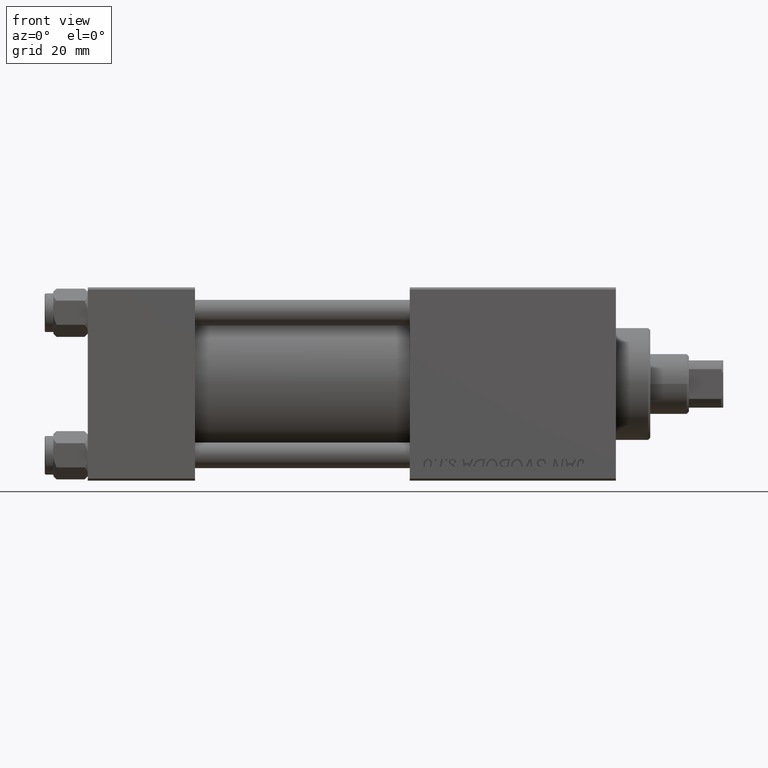
[diagram: clean part render]
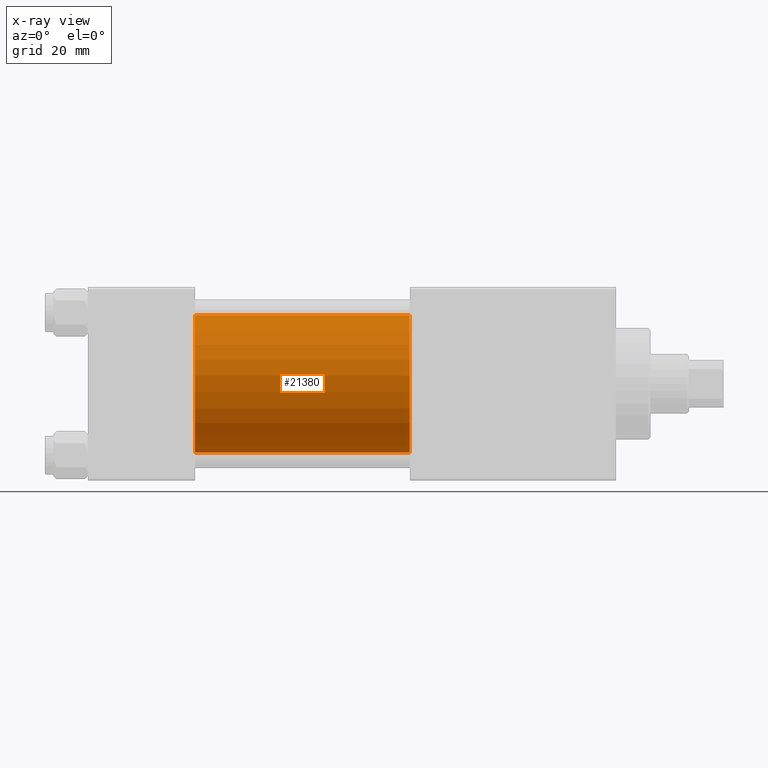
[diagram: x-ray — body ghosted, one internal face saturated and labeled with its STEP entity id]
A machine part, front view, then the same camera in x-ray: the body is ghosted and one INTERNAL B-rep face — a face not visible from any outside direction — is saturated and labeled: STEP entity #21380.
In plain terms, the highlighted cylindrical surface (partial cylindrical patch) has radius 16 mm, axis along (-1, -0, -0).
Its self-contained STEP definition (entity closure, byte-faithful):
#196 = ORIENTED_EDGE ( 'NONE', *, *, #17497, .T. ) ;
#504 = CIRCLE ( 'NONE', #41968, 16.00000000000000000 ) ;
#1637 = VERTEX_POINT ( 'NONE', #39428 ) ;
#3643 = CIRCLE ( 'NONE', #35335, 16.00000000000000000 ) ;
#5927 = CARTESIAN_POINT ( 'NONE',  ( 75.00000000000001421, -6.426503353294456087E-16, -16.00000000000000000 ) ) ;
#6178 = DIRECTION ( 'NONE',  ( -1.000000000000000000, -0.000000000000000000, -0.000000000000000000 ) ) ;
#6396 = ORIENTED_EDGE ( 'NONE', *, *, #40834, .T. ) ;
#6919 = VERTEX_POINT ( 'NONE', #12390 ) ;
#9381 = ORIENTED_EDGE ( 'NONE', *, *, #36210, .F. ) ;
#10246 = DIRECTION ( 'NONE',  ( 0.000000000000000000, 0.000000000000000000, 1.000000000000000000 ) ) ;
#11720 = VERTEX_POINT ( 'NONE', #23829 ) ;
#12390 = CARTESIAN_POINT ( 'NONE',  ( 75.00000000000001421, -6.426503353294456087E-16, -16.00000000000000000 ) ) ;
#13632 = VERTEX_POINT ( 'NONE', #27754 ) ;
#15426 = DIRECTION ( 'NONE',  ( 1.000000000000000000, 0.000000000000000000, 0.000000000000000000 ) ) ;
#17497 = EDGE_CURVE ( 'NONE', #6919, #11720, #33442, .T. ) ;
#18273 = LINE ( 'NONE', #49074, #32670 ) ;
#21380 = ADVANCED_FACE ( 'NONE', ( #21957 ), #21694, .F. ) ;
#21694 = CYLINDRICAL_SURFACE ( 'NONE', #39996, 16.00000000000000000 ) ;
#21957 = FACE_OUTER_BOUND ( 'NONE', #30519, .T. ) ;
#22030 = EDGE_CURVE ( 'NONE', #13632, #1637, #18273, .T. ) ;
#23611 = VECTOR ( 'NONE', #6178, 1000.000000000000000 ) ;
#23829 = CARTESIAN_POINT ( 'NONE',  ( 25.00000000000000000, -6.426503353294456087E-16, -16.00000000000000000 ) ) ;
#25927 = DIRECTION ( 'NONE',  ( -1.000000000000000000, -0.000000000000000000, -0.000000000000000000 ) ) ;
#27754 = CARTESIAN_POINT ( 'NONE',  ( 75.00000000000001421, -2.602085213965210642E-15, 16.00000000000000000 ) ) ;
#30519 = EDGE_LOOP ( 'NONE', ( #6396, #196, #9381, #39556 ) ) ;
#30987 = DIRECTION ( 'NONE',  ( 0.000000000000000000, 0.000000000000000000, -1.000000000000000000 ) ) ;
#31589 = CARTESIAN_POINT ( 'NONE',  ( 25.00000000000000000, -2.602085213965210642E-15, 0.000000000000000000 ) ) ;
#32670 = VECTOR ( 'NONE', #25927, 1000.000000000000000 ) ;
#33442 = LINE ( 'NONE', #5927, #23611 ) ;
#34801 = CARTESIAN_POINT ( 'NONE',  ( 75.00000000000001421, -2.602085213965210642E-15, 0.000000000000000000 ) ) ;
#35335 = AXIS2_PLACEMENT_3D ( 'NONE', #31589, #43520, #39468 ) ;
#36210 = EDGE_CURVE ( 'NONE', #1637, #11720, #3643, .T. ) ;
#39428 = CARTESIAN_POINT ( 'NONE',  ( 25.00000000000000000, -2.602085213965210642E-15, 16.00000000000000000 ) ) ;
#39468 = DIRECTION ( 'NONE',  ( 0.000000000000000000, 0.000000000000000000, -1.000000000000000000 ) ) ;
#39556 = ORIENTED_EDGE ( 'NONE', *, *, #22030, .F. ) ;
#39996 = AXIS2_PLACEMENT_3D ( 'NONE', #49196, #48185, #10246 ) ;
#40834 = EDGE_CURVE ( 'NONE', #13632, #6919, #504, .T. ) ;
#41968 = AXIS2_PLACEMENT_3D ( 'NONE', #34801, #15426, #30987 ) ;
#43520 = DIRECTION ( 'NONE',  ( 1.000000000000000000, 0.000000000000000000, 0.000000000000000000 ) ) ;
#48185 = DIRECTION ( 'NONE',  ( -1.000000000000000000, -0.000000000000000000, -0.000000000000000000 ) ) ;
#49074 = CARTESIAN_POINT ( 'NONE',  ( 75.00000000000001421, -2.602085213965210642E-15, 16.00000000000000000 ) ) ;
#49196 = CARTESIAN_POINT ( 'NONE',  ( 75.00000000000001421, -2.602085213965210642E-15, 0.000000000000000000 ) ) ;